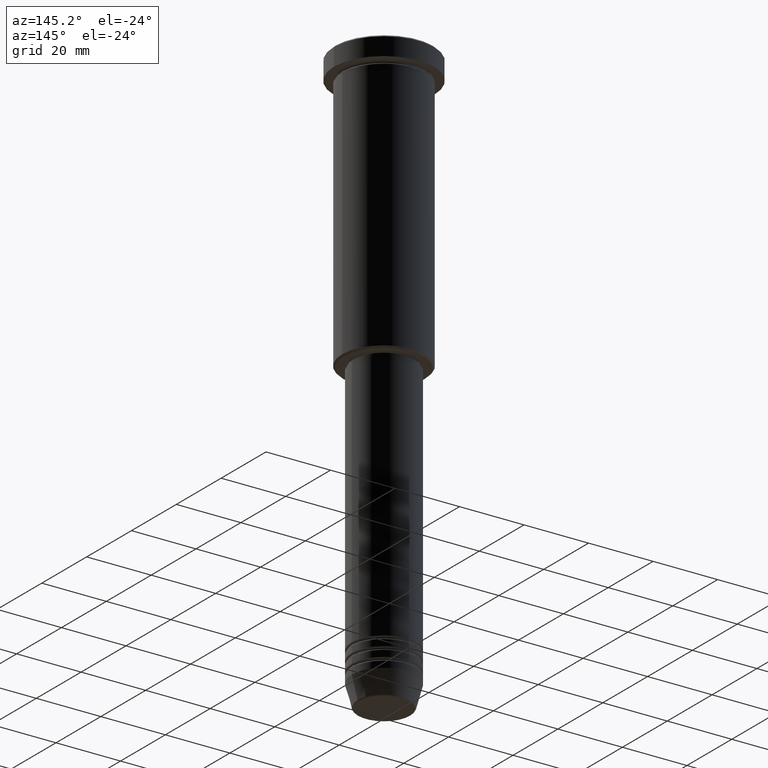
[diagram: clean part render]
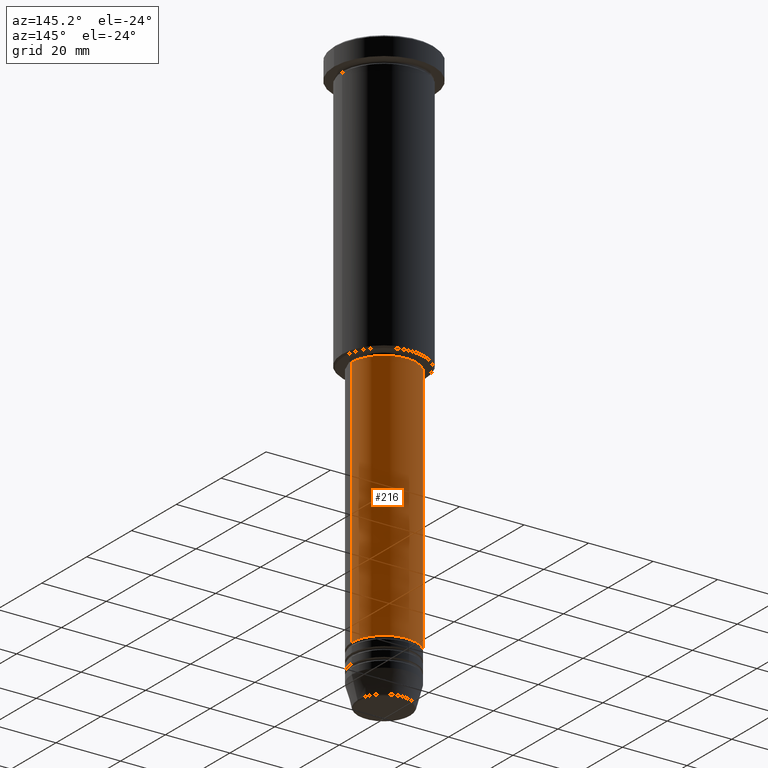
[diagram: same view with one face highlighted and labeled with its STEP entity id]
A machine part, auxiliary view. The second image highlights one B-rep face of the part: STEP entity #216.
In plain terms, the highlighted cylindrical surface (partial cylindrical patch) has radius 10 mm, axis along (-0, -0, 1).
Its self-contained STEP definition (entity closure, byte-faithful):
#11 = CIRCLE ( 'NONE', #447, 10.00000000000000000 ) ;
#32 = DIRECTION ( 'NONE',  ( 1.000000000000000000, 0.000000000000000000, 0.000000000000000000 ) ) ;
#35 = DIRECTION ( 'NONE',  ( 1.000000000000000000, 0.000000000000000000, 0.000000000000000000 ) ) ;
#36 = LINE ( 'NONE', #1130, #658 ) ;
#40 = CYLINDRICAL_SURFACE ( 'NONE', #485, 10.00000000000000000 ) ;
#58 = CARTESIAN_POINT ( 'NONE',  ( 0.000000000000000000, 0.000000000000000000, 0.000000000000000000 ) ) ;
#73 = ORIENTED_EDGE ( 'NONE', *, *, #953, .T. ) ;
#114 = DIRECTION ( 'NONE',  ( -0.000000000000000000, -0.000000000000000000, 1.000000000000000000 ) ) ;
#186 = CIRCLE ( 'NONE', #1158, 10.00000000000000000 ) ;
#216 = ADVANCED_FACE ( 'NONE', ( #862 ), #40, .T. ) ;
#224 = VERTEX_POINT ( 'NONE', #961 ) ;
#263 = DIRECTION ( 'NONE',  ( 1.000000000000000000, 0.000000000000000000, 0.000000000000000000 ) ) ;
#266 = CARTESIAN_POINT ( 'NONE',  ( 10.00000000000000000, 0.000000000000000000, -87.00000000000002842 ) ) ;
#274 = LINE ( 'NONE', #915, #884 ) ;
#279 = CARTESIAN_POINT ( 'NONE',  ( 0.000000000000000000, 0.000000000000000000, -164.9999999999999716 ) ) ;
#288 = VERTEX_POINT ( 'NONE', #300 ) ;
#299 = VERTEX_POINT ( 'NONE', #266 ) ;
#300 = CARTESIAN_POINT ( 'NONE',  ( 10.00000000000000000, 0.000000000000000000, -164.9999999999999716 ) ) ;
#447 = AXIS2_PLACEMENT_3D ( 'NONE', #1040, #114, #32 ) ;
#485 = AXIS2_PLACEMENT_3D ( 'NONE', #58, #759, #35 ) ;
#525 = ORIENTED_EDGE ( 'NONE', *, *, #582, .F. ) ;
#532 = EDGE_LOOP ( 'NONE', ( #73, #665, #577, #525 ) ) ;
#577 = ORIENTED_EDGE ( 'NONE', *, *, #681, .F. ) ;
#582 = EDGE_CURVE ( 'NONE', #288, #299, #274, .T. ) ;
#648 = DIRECTION ( 'NONE',  ( -0.000000000000000000, -0.000000000000000000, 1.000000000000000000 ) ) ;
#658 = VECTOR ( 'NONE', #950, 1000.000000000000000 ) ;
#665 = ORIENTED_EDGE ( 'NONE', *, *, #1098, .T. ) ;
#681 = EDGE_CURVE ( 'NONE', #299, #979, #11, .T. ) ;
#759 = DIRECTION ( 'NONE',  ( -0.000000000000000000, -0.000000000000000000, 1.000000000000000000 ) ) ;
#862 = FACE_OUTER_BOUND ( 'NONE', #532, .T. ) ;
#884 = VECTOR ( 'NONE', #648, 1000.000000000000000 ) ;
#898 = DIRECTION ( 'NONE',  ( -0.000000000000000000, -0.000000000000000000, 1.000000000000000000 ) ) ;
#910 = CARTESIAN_POINT ( 'NONE',  ( -10.00000000000000000, 1.224646799147353256E-15, -87.00000000000002842 ) ) ;
#915 = CARTESIAN_POINT ( 'NONE',  ( 10.00000000000000000, 0.000000000000000000, 0.000000000000000000 ) ) ;
#950 = DIRECTION ( 'NONE',  ( -0.000000000000000000, -0.000000000000000000, 1.000000000000000000 ) ) ;
#953 = EDGE_CURVE ( 'NONE', #288, #224, #186, .T. ) ;
#961 = CARTESIAN_POINT ( 'NONE',  ( -10.00000000000000000, 1.224646799147353256E-15, -164.9999999999999716 ) ) ;
#979 = VERTEX_POINT ( 'NONE', #910 ) ;
#1040 = CARTESIAN_POINT ( 'NONE',  ( 0.000000000000000000, 0.000000000000000000, -87.00000000000002842 ) ) ;
#1098 = EDGE_CURVE ( 'NONE', #224, #979, #36, .T. ) ;
#1130 = CARTESIAN_POINT ( 'NONE',  ( -10.00000000000000000, 1.224646799147353256E-15, 0.000000000000000000 ) ) ;
#1158 = AXIS2_PLACEMENT_3D ( 'NONE', #279, #898, #263 ) ;